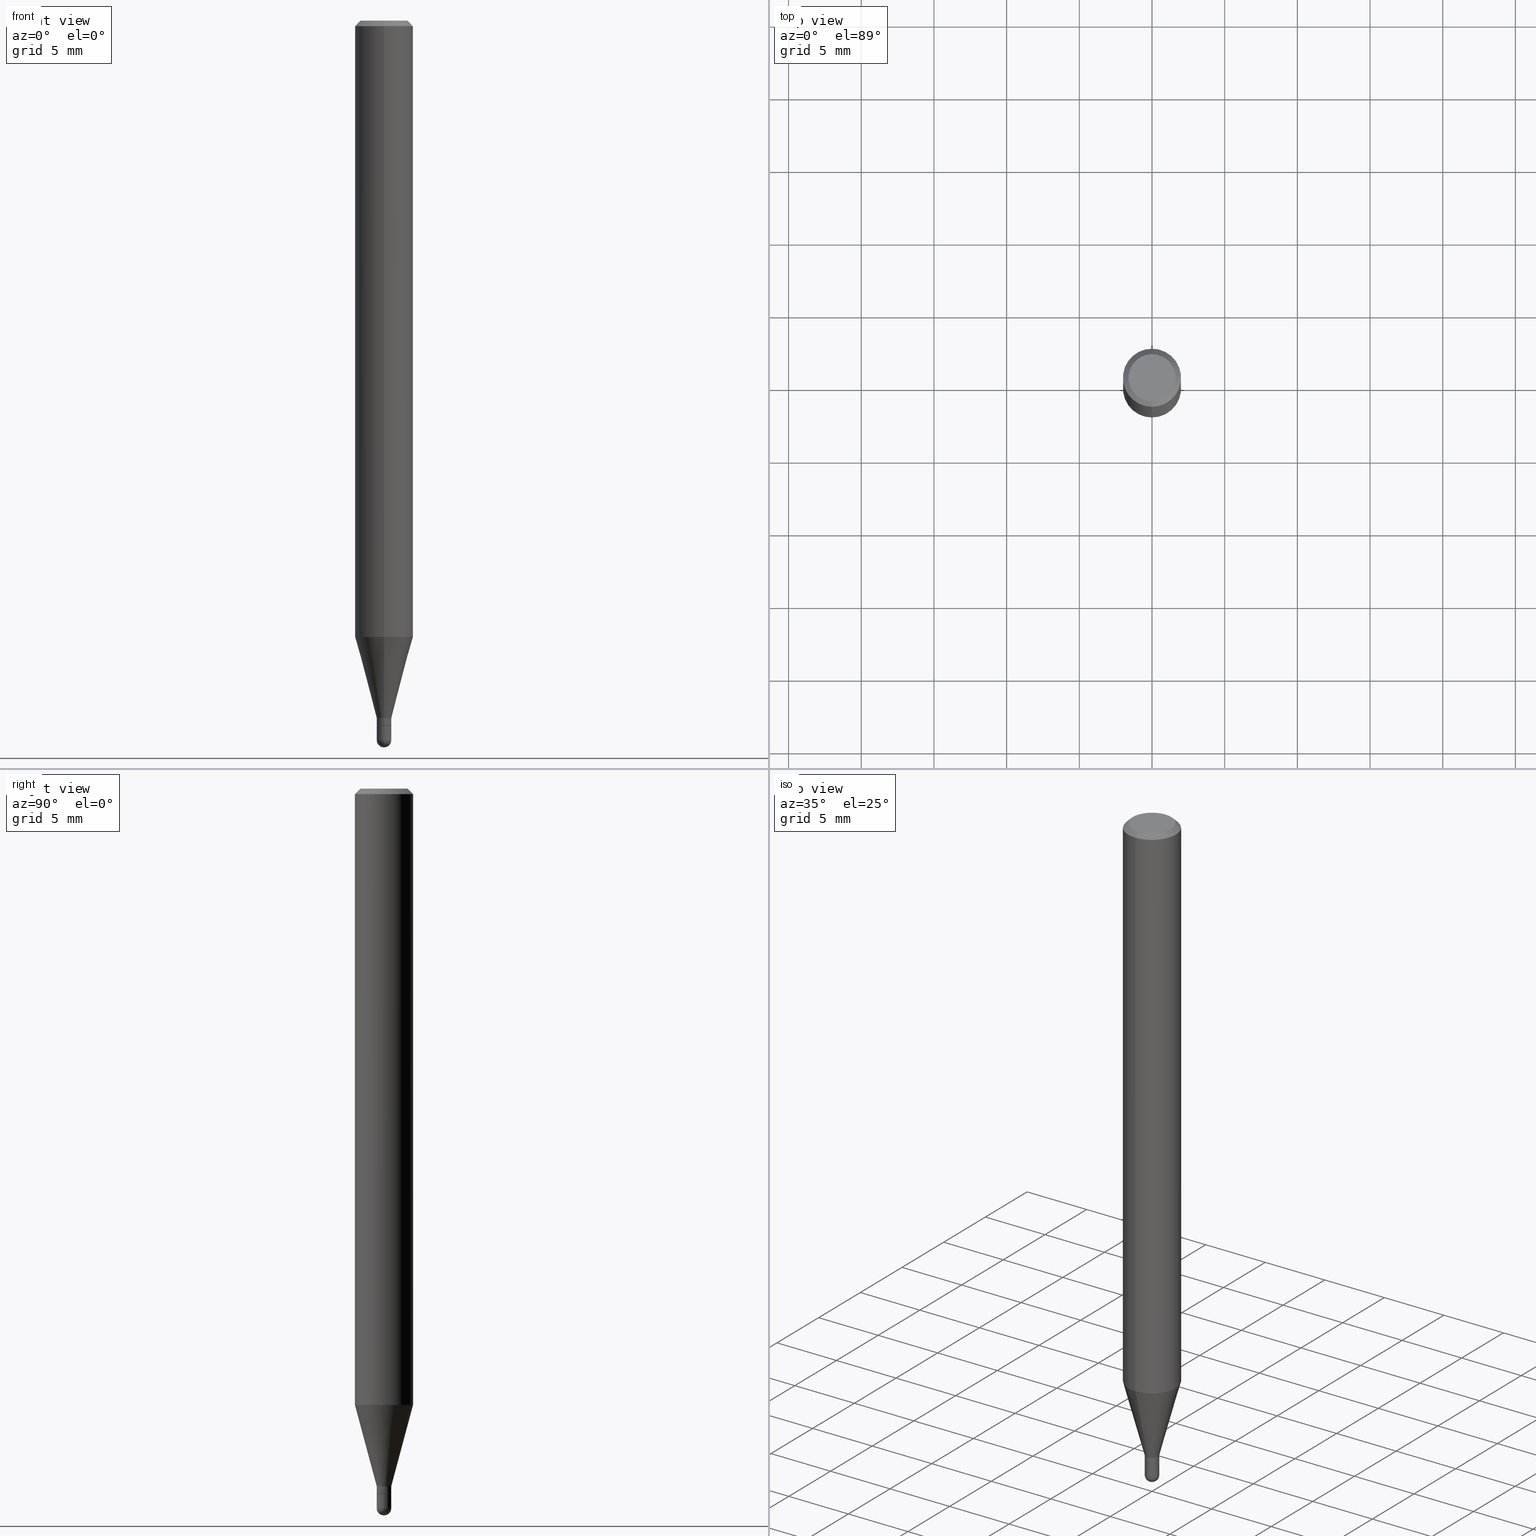
[diagram: canonical four-view strip — front | top / right | iso, engineering-drawing reading convention]
A machine part, canonical four-view strip (front | top / right | iso — engineering-drawing reading convention). The complete STEP part file that produces these views, byte-faithful:
ISO-10303-21;
HEADER;
FILE_DESCRIPTION (( 'STEP AP203' ),
    '1' );
FILE_NAME ('02031.STEP',
    '2024-03-07T19:57:05',
    ( '' ),
    ( '' ),
    'SwSTEP 2.0',
    'SolidWorks 2023',
    '' );
FILE_SCHEMA (( 'CONFIG_CONTROL_DESIGN' ));
ENDSEC;

DATA;
#1 = LINE ( 'NONE', #472, #67 ) ;
#2 = DIRECTION ( 'NONE',  ( -2.444276121271986138E-29, 3.493189331522186389E-15, 1.000000000000000000 ) ) ;
#3 = AXIS2_PLACEMENT_3D ( 'NONE', #57, #369, #54 ) ;
#4 = ORIENTED_EDGE ( 'NONE', *, *, #414, .F. ) ;
#5 = DIRECTION ( 'NONE',  ( -2.444276121271986138E-29, 3.493189331522185995E-15, 1.000000000000000000 ) ) ;
#6 = ADVANCED_FACE ( 'NONE', ( #226 ), #271, .T. ) ;
#7 = PLANE ( 'NONE',  #394 ) ;
#8 = ORIENTED_EDGE ( 'NONE', *, *, #412, .T. ) ;
#9 = APPROVAL_ROLE ( '' ) ;
#10 = DIRECTION ( 'NONE',  ( 1.000000000000000000, -6.982962677686276177E-15, 0.000000000000000000 ) ) ;
#11 = CIRCLE ( 'NONE', #302, 0.07875000000000000056 ) ;
#12 = DIRECTION ( 'NONE',  ( 6.982962677686264344E-15, 1.000000000000000000, -3.496114991891765576E-15 ) ) ;
#13 = CONICAL_SURFACE ( 'NONE', #172, 0.01920000000000000179, 0.7853981633974739252 ) ;
#14 = CC_DESIGN_DATE_AND_TIME_ASSIGNMENT ( #415, #494, ( #452 ) ) ;
#15 = ADVANCED_FACE ( 'NONE', ( #438 ), #144, .T. ) ;
#16 = LINE ( 'NONE', #171, #182 ) ;
#17 = EDGE_CURVE ( 'NONE', #152, #454, #451, .T. ) ;
#18 = CONICAL_SURFACE ( 'NONE', #418, 0.07875000000000000056, 0.7853981633974483900 ) ;
#19 = AXIS2_PLACEMENT_3D ( 'NONE', #512, #432, #356 ) ;
#20 = CC_DESIGN_PERSON_AND_ORGANIZATION_ASSIGNMENT ( #279, #474, ( #156 ) ) ;
#21 = CALENDAR_DATE ( 2024, 7, 3 ) ;
#22 = VERTEX_POINT ( 'NONE', #128 ) ;
#23 = AXIS2_PLACEMENT_3D ( 'NONE', #347, #371, #10 ) ;
#24 = ORIENTED_EDGE ( 'NONE', *, *, #412, .F. ) ;
#25 = EDGE_LOOP ( 'NONE', ( #4, #270, #185, #421 ) ) ;
#26 = DIRECTION ( 'NONE',  ( -6.982962677686264344E-15, -1.000000000000000000, 3.493189331522186389E-15 ) ) ;
#27 = VERTEX_POINT ( 'NONE', #389 ) ;
#28 = LINE ( 'NONE', #504, #331 ) ;
#29 = DIRECTION ( 'NONE',  ( -6.982962677686265922E-15, -1.000000000000000000, 0.000000000000000000 ) ) ;
#30 = ORIENTED_EDGE ( 'NONE', *, *, #17, .T. ) ;
#31 = UNCERTAINTY_MEASURE_WITH_UNIT (LENGTH_MEASURE( 1.000000000000000082E-05 ), #45, 'distance_accuracy_value', 'NONE');
#32 = EDGE_LOOP ( 'NONE', ( #110, #199, #406, #277, #84 ) ) ;
#33 = CARTESIAN_POINT ( 'NONE',  ( -5.499083108677528180E-16, -0.07875000000000582923, -1.669122399813057989 ) ) ;
#34 = CYLINDRICAL_SURFACE ( 'NONE', #250, 0.07875000000000000056 ) ;
#35 = PERSON_AND_ORGANIZATION ( #311, #155 ) ;
#36 = CIRCLE ( 'NONE', #498, 0.01970000000000000570 ) ;
#37 = DIRECTION ( 'NONE',  ( 6.982962677686264344E-15, 1.000000000000000000, -3.496114991891765576E-15 ) ) ;
#38 = CARTESIAN_POINT ( 'NONE',  ( 4.764044931903911326E-29, -6.806611387331842194E-15, -1.948800000000000088 ) ) ;
#39 = CARTESIAN_POINT ( 'NONE',  ( 4.618459731143418039E-29, -6.600381241911171690E-15, -1.889499999999999957 ) ) ;
#40 = FACE_OUTER_BOUND ( 'NONE', #25, .T. ) ;
#41 = CARTESIAN_POINT ( 'NONE',  ( 4.667100825956731031E-29, -6.669895709608463637E-15, -1.909400000000000208 ) ) ;
#42 = COORDINATED_UNIVERSAL_TIME_OFFSET ( 5, 0, .BEHIND. ) ;
#43 = AXIS2_PLACEMENT_3D ( 'NONE', #397, #2, #113 ) ;
#44 = ADVANCED_FACE ( 'NONE', ( #334 ), #34, .T. ) ;
#45 =( CONVERSION_BASED_UNIT ( 'INCH', #324 ) LENGTH_UNIT ( ) NAMED_UNIT ( #149 ) );
#46 = VERTEX_POINT ( 'NONE', #100 ) ;
#47 = DIRECTION ( 'NONE',  ( 1.000000000000000000, -6.982962677686267499E-15, 4.876176775795935232E-29 ) ) ;
#48 = DIRECTION ( 'NONE',  ( 1.000000000000000000, -6.982962677686278543E-15, 0.000000000000000000 ) ) ;
#49 = EDGE_LOOP ( 'NONE', ( #483, #313, #300, #262 ) ) ;
#50 = CARTESIAN_POINT ( 'NONE',  ( 0.01970000000000000570, -6.872981015512733285E-15, -1.948800000000000310 ) ) ;
#51 = DIRECTION ( 'NONE',  ( -1.000000000000000000, 6.982962677686266711E-15, -4.883557194083112901E-29 ) ) ;
#52 = AXIS2_PLACEMENT_3D ( 'NONE', #98, #211, #343 ) ;
#53 = CALENDAR_DATE ( 2024, 7, 3 ) ;
#54 = DIRECTION ( 'NONE',  ( -6.982962677686265922E-15, -1.000000000000000000, 0.000000000000000000 ) ) ;
#55 = PERSON_AND_ORGANIZATION_ROLE ( 'design_supplier' ) ;
#56 = FACE_OUTER_BOUND ( 'NONE', #335, .T. ) ;
#57 = CARTESIAN_POINT ( 'NONE',  ( 4.618459731143418039E-29, -6.600381241911171690E-15, -1.889499999999999957 ) ) ;
#58 = CIRCLE ( 'NONE', #108, 0.07875000000000000056 ) ;
#59 = LOCAL_TIME ( 14, 57, 5.000000000000000000, #377 ) ;
#60 = FACE_OUTER_BOUND ( 'NONE', #396, .T. ) ;
#61 = EDGE_LOOP ( 'NONE', ( #234, #140, #73, #197 ) ) ;
#62 = ORIENTED_EDGE ( 'NONE', *, *, #69, .F. ) ;
#63 = CARTESIAN_POINT ( 'NONE',  ( -1.375643647503727702E-16, -0.01970000000000653173, -1.889499999999999957 ) ) ;
#64 = ORIENTED_EDGE ( 'NONE', *, *, #205, .T. ) ;
#65 = VERTEX_POINT ( 'NONE', #510 ) ;
#66 = EDGE_CURVE ( 'NONE', #222, #65, #178, .T. ) ;
#67 = VECTOR ( 'NONE', #189, 39.37007874015748143 ) ;
#68 = VECTOR ( 'NONE', #327, 39.37007874015748143 ) ;
#69 = EDGE_CURVE ( 'NONE', #458, #152, #460, .T. ) ;
#70 = DIRECTION ( 'NONE',  ( -2.444276121271986138E-29, 3.493189331522186389E-15, 1.000000000000000000 ) ) ;
#71 = ADVANCED_FACE ( 'NONE', ( #203 ), #77, .F. ) ;
#72 = CARTESIAN_POINT ( 'NONE',  ( 4.813063006180600229E-29, -6.874187292609892149E-15, -1.968499999999999694 ) ) ;
#73 = ORIENTED_EDGE ( 'NONE', *, *, #88, .T. ) ;
#74 = APPROVAL_STATUS ( 'not_yet_approved' ) ;
#75 = CARTESIAN_POINT ( 'NONE',  ( 4.079796025343252111E-29, -5.830560560031684325E-15, -1.669122399813058433 ) ) ;
#76 = AXIS2_PLACEMENT_3D ( 'NONE', #159, #314, #161 ) ;
#77 = PLANE ( 'NONE',  #240 ) ;
#78 = ORIENTED_EDGE ( 'NONE', *, *, #17, .F. ) ;
#79 = DIRECTION ( 'NONE',  ( -6.982962677686264344E-15, -1.000000000000000000, 0.000000000000000000 ) ) ;
#80 = ORIENTED_EDGE ( 'NONE', *, *, #291, .T. ) ;
#81 = ORIENTED_EDGE ( 'NONE', *, *, #291, .F. ) ;
#82 = DIRECTION ( 'NONE',  ( 6.982962677686265922E-15, 1.000000000000000000, 0.000000000000000000 ) ) ;
#83 = DIRECTION ( 'NONE',  ( -2.445468806185136597E-29, 3.491481338843145583E-15, 1.000000000000000000 ) ) ;
#84 = ORIENTED_EDGE ( 'NONE', *, *, #148, .F. ) ;
#85 = CARTESIAN_POINT ( 'NONE',  ( 4.079796025343252111E-29, -5.830560560031684325E-15, -1.669122399813058433 ) ) ;
#86 = CARTESIAN_POINT ( 'NONE',  ( -4.888104823412213911E-16, -0.06375000000000000111, 4.578979883307718753E-16 ) ) ;
#87 = ADVANCED_FACE ( 'NONE', ( #493 ), #281, .T. ) ;
#88 = EDGE_CURVE ( 'NONE', #502, #22, #58, .T. ) ;
#89 = ORIENTED_EDGE ( 'NONE', *, *, #325, .F. ) ;
#90 = AXIS2_PLACEMENT_3D ( 'NONE', #489, #429, #26 ) ;
#91 = DIRECTION ( 'NONE',  ( -6.982962677686264344E-15, -1.000000000000000000, 0.000000000000000000 ) ) ;
#92 = DIRECTION ( 'NONE',  ( -2.445468806185136597E-29, 3.491481338843145583E-15, 1.000000000000000000 ) ) ;
#93 = PRODUCT_DEFINITION_FORMATION_WITH_SPECIFIED_SOURCE ( 'ANY', '', #156, .NOT_KNOWN. ) ;
#94 = CARTESIAN_POINT ( 'NONE',  ( 0.000000000000000000, 0.000000000000000000, 0.000000000000000000 ) ) ;
#95 = APPROVAL_PERSON_ORGANIZATION ( #375, #388, #9 ) ;
#96 = PERSON_AND_ORGANIZATION ( #311, #155 ) ;
#97 = CARTESIAN_POINT ( 'NONE',  ( 5.499083108677937401E-16, 0.07874999999999994504, -0.01500000000000004108 ) ) ;
#98 = CARTESIAN_POINT ( 'NONE',  ( 0.000000000000000000, 0.000000000000000000, 0.000000000000000000 ) ) ;
#99 = COORDINATED_UNIVERSAL_TIME_OFFSET ( 5, 0, .BEHIND. ) ;
#100 = CARTESIAN_POINT ( 'NONE',  ( -0.01969999999999999876, -6.595439731817572395E-15, -1.909400000000000208 ) ) ;
#101 = EDGE_LOOP ( 'NONE', ( #456, #8, #475, #143 ) ) ;
#102 = CYLINDRICAL_SURFACE ( 'NONE', #90, 0.01969999999999992937 ) ;
#103 = APPROVAL_STATUS ( 'not_yet_approved' ) ;
#104 = AXIS2_PLACEMENT_3D ( 'NONE', #466, #51, #358 ) ;
#105 = APPROVAL_PERSON_ORGANIZATION ( #497, #459, #225 ) ;
#106 = PERSON_AND_ORGANIZATION ( #311, #155 ) ;
#107 = DIRECTION ( 'NONE',  ( -2.445468806185136597E-29, 3.491481338843145583E-15, 1.000000000000000000 ) ) ;
#108 = AXIS2_PLACEMENT_3D ( 'NONE', #138, #340, #486 ) ;
#109 = AXIS2_PLACEMENT_3D ( 'NONE', #39, #348, #164 ) ;
#110 = ORIENTED_EDGE ( 'NONE', *, *, #183, .F. ) ;
#111 = ORIENTED_EDGE ( 'NONE', *, *, #315, .F. ) ;
#112 = CLOSED_SHELL ( 'NONE', ( #6, #15, #420, #87, #481, #395, #44, #131, #492, #71, #422, #232 ) ) ;
#113 = DIRECTION ( 'NONE',  ( -6.982962677686264344E-15, -1.000000000000000000, 3.493189331522186389E-15 ) ) ;
#114 = DIRECTION ( 'NONE',  ( -1.807323732225331323E-15, -0.2588190451025183525, 0.9659258262890689783 ) ) ;
#115 = LINE ( 'NONE', #387, #424 ) ;
#116 = DIRECTION ( 'NONE',  ( -2.445468806185136597E-29, 3.491481338843145583E-15, 1.000000000000000000 ) ) ;
#117 = AXIS2_PLACEMENT_3D ( 'NONE', #447, #206, #132 ) ;
#118 = CC_DESIGN_SECURITY_CLASSIFICATION ( #452, ( #93 ) ) ;
#119 = PLANE ( 'NONE',  #19 ) ;
#120 = EDGE_LOOP ( 'NONE', ( #364, #202, #419, #437 ) ) ;
#121 = VERTEX_POINT ( 'NONE', #500 ) ;
#122 = CARTESIAN_POINT ( 'NONE',  ( -1.375643647503727702E-16, -0.01970000000000653173, -1.889499999999999957 ) ) ;
#123 = CARTESIAN_POINT ( 'NONE',  ( -0.01970000000000000223, 1.399769189447397525E-16, -9.690302127802166004E-31 ) ) ;
#124 =( NAMED_UNIT ( * ) SI_UNIT ( $, .STERADIAN. ) SOLID_ANGLE_UNIT ( ) );
#125 = EDGE_LOOP ( 'NONE', ( #296, #450, #174, #167 ) ) ;
#126 = CIRCLE ( 'NONE', #345, 0.07875000000000000056 ) ;
#127 = AXIS2_PLACEMENT_3D ( 'NONE', #392, #193, #355 ) ;
#128 = CARTESIAN_POINT ( 'NONE',  ( 5.595524044111199211E-16, 0.07874999999999994504, -0.01500000000000004108 ) ) ;
#129 = CALENDAR_DATE ( 2024, 7, 3 ) ;
#130 =( NAMED_UNIT ( * ) PLANE_ANGLE_UNIT ( ) SI_UNIT ( $, .RADIAN. ) );
#131 = ADVANCED_FACE ( 'NONE', ( #210 ), #18, .T. ) ;
#132 = DIRECTION ( 'NONE',  ( -6.982962677686265133E-15, -1.000000000000000000, 0.000000000000000000 ) ) ;
#133 = CARTESIAN_POINT ( 'NONE',  ( 4.667100825956731031E-29, -6.669895709608463637E-15, -1.909400000000000208 ) ) ;
#134 = CARTESIAN_POINT ( 'NONE',  ( 4.669378138529899942E-29, -6.666634468387102886E-15, -1.909400000000000208 ) ) ;
#135 = AXIS2_PLACEMENT_3D ( 'NONE', #464, #431, #91 ) ;
#136 = APPROVAL_PERSON_ORGANIZATION ( #96, #333, #246 ) ;
#137 = DIRECTION ( 'NONE',  ( -2.444276121271986138E-29, 3.493189331522186389E-15, 1.000000000000000000 ) ) ;
#138 = CARTESIAN_POINT ( 'NONE',  ( 3.666414181907922070E-31, -5.239783997283198085E-17, -0.01499999999999976526 ) ) ;
#139 = ORIENTED_EDGE ( 'NONE', *, *, #509, .F. ) ;
#140 = ORIENTED_EDGE ( 'NONE', *, *, #473, .T. ) ;
#141 = SPHERICAL_SURFACE ( 'NONE', #104, 0.01969999999999990509 ) ;
#142 = CC_DESIGN_PERSON_AND_ORGANIZATION_ASSIGNMENT ( #192, #55, ( #93 ) ) ;
#143 = ORIENTED_EDGE ( 'NONE', *, *, #354, .F. ) ;
#144 = CONICAL_SURFACE ( 'NONE', #488, 0.01920000000000000179, 0.7853981633974739252 ) ;
#145 = ORIENTED_EDGE ( 'NONE', *, *, #380, .T. ) ;
#146 = MANIFOLD_SOLID_BREP ( 'Body-Move/Copy2[2]', #112 ) ;
#147 = EDGE_CURVE ( 'NONE', #247, #184, #359, .T. ) ;
#148 = EDGE_CURVE ( 'NONE', #46, #221, #330, .T. ) ;
#149 = DIMENSIONAL_EXPONENTS ( 1.000000000000000000, 0.000000000000000000, 0.000000000000000000, 0.000000000000000000, 0.000000000000000000, 0.000000000000000000, 0.000000000000000000 ) ;
#150 = ORIENTED_EDGE ( 'NONE', *, *, #310, .T. ) ;
#151 = CARTESIAN_POINT ( 'NONE',  ( 1.399769189447853585E-16, 0.01969999999999318824, -1.908900000000000263 ) ) ;
#152 = VERTEX_POINT ( 'NONE', #434 ) ;
#153 = DIRECTION ( 'NONE',  ( -2.445468806185136597E-29, 3.491481338843145583E-15, 1.000000000000000000 ) ) ;
#154 = DESIGN_CONTEXT ( 'detailed design', #485, 'design' ) ;
#155 = ORGANIZATION ( 'UNSPECIFIED', 'UNSPECIFIED', '' ) ;
#156 = PRODUCT ( '02031', '02031', '', ( #373 ) ) ;
#157 = DIRECTION ( 'NONE',  ( -2.444276121271986138E-29, 3.493189331522186389E-15, 1.000000000000000000 ) ) ;
#158 = CARTESIAN_POINT ( 'NONE',  ( 1.399769189447854324E-16, 0.01969999999999333395, -1.889499999999999957 ) ) ;
#159 = CARTESIAN_POINT ( 'NONE',  ( 4.765729609493595098E-29, -6.804198833137522889E-15, -1.948800000000000310 ) ) ;
#160 = DIRECTION ( 'NONE',  ( -6.982962677686264344E-15, -1.000000000000000000, 3.469013325287953293E-15 ) ) ;
#161 = DIRECTION ( 'NONE',  ( 1.000000000000000000, -6.982962677686276177E-15, 0.000000000000000000 ) ) ;
#162 = ORIENTED_EDGE ( 'NONE', *, *, #455, .T. ) ;
#163 = VECTOR ( 'NONE', #280, 39.37007874015748143 ) ;
#164 = DIRECTION ( 'NONE',  ( -6.982962677686265922E-15, -1.000000000000000000, 0.000000000000000000 ) ) ;
#165 = ORIENTED_EDGE ( 'NONE', *, *, #354, .T. ) ;
#166 = COORDINATED_UNIVERSAL_TIME_OFFSET ( 5, 0, .BEHIND. ) ;
#167 = ORIENTED_EDGE ( 'NONE', *, *, #339, .F. ) ;
#168 = PRODUCT_RELATED_PRODUCT_CATEGORY ( 'detail', '', ( #156 ) ) ;
#169 = DIRECTION ( 'NONE',  ( -2.444276121271986138E-29, 3.493189331522186389E-15, 1.000000000000000000 ) ) ;
#170 = AXIS2_PLACEMENT_3D ( 'NONE', #229, #385, #29 ) ;
#171 = CARTESIAN_POINT ( 'NONE',  ( 5.595524044110787031E-16, 0.07875000000000000056, -2.750886598573721673E-16 ) ) ;
#172 = AXIS2_PLACEMENT_3D ( 'NONE', #508, #157, #462 ) ;
#173 = CARTESIAN_POINT ( 'NONE',  ( 4.669378138529899942E-29, -6.666634468387102886E-15, -1.909400000000000208 ) ) ;
#174 = ORIENTED_EDGE ( 'NONE', *, *, #341, .F. ) ;
#175 = DIRECTION ( 'NONE',  ( 6.982962677686265922E-15, 1.000000000000000000, -3.493189331522185995E-15 ) ) ;
#176 = LINE ( 'NONE', #288, #200 ) ;
#177 =( LENGTH_UNIT ( ) NAMED_UNIT ( * ) SI_UNIT ( $, .METRE. ) );
#178 = CIRCLE ( 'NONE', #170, 0.01969999999999993284 ) ;
#179 = EDGE_CURVE ( 'NONE', #236, #152, #36, .T. ) ;
#180 = CC_DESIGN_PERSON_AND_ORGANIZATION_ASSIGNMENT ( #106, #448, ( #93 ) ) ;
#181 = CIRCLE ( 'NONE', #3, 0.01969999999999993284 ) ;
#182 = VECTOR ( 'NONE', #363, 39.37007874015748143 ) ;
#183 = EDGE_CURVE ( 'NONE', #454, #46, #368, .T. ) ;
#184 = VERTEX_POINT ( 'NONE', #204 ) ;
#185 = ORIENTED_EDGE ( 'NONE', *, *, #339, .T. ) ;
#186 = LINE ( 'NONE', #158, #243 ) ;
#187 = ORIENTED_EDGE ( 'NONE', *, *, #263, .F. ) ;
#188 = ORIENTED_EDGE ( 'NONE', *, *, #503, .F. ) ;
#189 = DIRECTION ( 'NONE',  ( -2.444276121271985858E-29, 3.493189331522185995E-15, 1.000000000000000000 ) ) ;
#190 = CARTESIAN_POINT ( 'NONE',  ( 0.000000000000000000, 0.000000000000000000, 0.000000000000000000 ) ) ;
#191 = CLOSED_SHELL ( 'NONE', ( #417, #216, #391, #329, #304 ) ) ;
#192 = PERSON_AND_ORGANIZATION ( #311, #155 ) ;
#193 = DIRECTION ( 'NONE',  ( -2.444276121271986138E-29, 3.493189331522186389E-15, 1.000000000000000000 ) ) ;
#194 = CARTESIAN_POINT ( 'NONE',  ( 4.764044931903911326E-29, -6.806611387331842194E-15, -1.948800000000000088 ) ) ;
#195 = LINE ( 'NONE', #260, #342 ) ;
#196 = ORIENTED_EDGE ( 'NONE', *, *, #505, .T. ) ;
#197 = ORIENTED_EDGE ( 'NONE', *, *, #213, .F. ) ;
#198 = CARTESIAN_POINT ( 'NONE',  ( -1.399769189446917306E-16, -0.01970000000000675724, -1.948800000000000310 ) ) ;
#199 = ORIENTED_EDGE ( 'NONE', *, *, #259, .T. ) ;
#200 = VECTOR ( 'NONE', #255, 39.37007874015748143 ) ;
#201 =( GEOMETRIC_REPRESENTATION_CONTEXT ( 3 ) GLOBAL_UNCERTAINTY_ASSIGNED_CONTEXT ( ( #31 ) ) GLOBAL_UNIT_ASSIGNED_CONTEXT ( ( #45, #130, #124 ) ) REPRESENTATION_CONTEXT ( 'NONE', 'WORKASPACE' ) );
#202 = ORIENTED_EDGE ( 'NONE', *, *, #503, .T. ) ;
#203 = FACE_OUTER_BOUND ( 'NONE', #297, .T. ) ;
#204 = CARTESIAN_POINT ( 'NONE',  ( 4.975360907851465623E-16, 0.06375000000000000111, 1.251634856169306932E-17 ) ) ;
#205 = EDGE_CURVE ( 'NONE', #299, #362, #11, .T. ) ;
#206 = DIRECTION ( 'NONE',  ( -2.444276121271986138E-29, 3.493189331522186389E-15, 1.000000000000000000 ) ) ;
#207 = APPROVAL_DATE_TIME ( #410, #333 ) ;
#208 = DIRECTION ( 'NONE',  ( 6.982962677686266711E-15, 1.000000000000000000, 0.000000000000000000 ) ) ;
#209 = AXIS2_PLACEMENT_3D ( 'NONE', #220, #309, #79 ) ;
#210 = FACE_OUTER_BOUND ( 'NONE', #357, .T. ) ;
#211 = DIRECTION ( 'NONE',  ( -2.444276121271986138E-29, 3.493189331522186389E-15, 1.000000000000000000 ) ) ;
#212 = DATE_TIME_ROLE ( 'creation_date' ) ;
#213 = EDGE_CURVE ( 'NONE', #184, #22, #480, .T. ) ;
#214 = CIRCLE ( 'NONE', #242, 0.01969999999999990509 ) ;
#215 = SHAPE_DEFINITION_REPRESENTATION ( #295, #381 ) ;
#216 = ADVANCED_FACE ( 'NONE', ( #56 ), #261, .T. ) ;
#217 = EDGE_CURVE ( 'NONE', #425, #236, #268, .T. ) ;
#218 = EDGE_LOOP ( 'NONE', ( #30, #227, #298, #139, #401 ) ) ;
#219 = CC_DESIGN_APPROVAL ( #459, ( #452 ) ) ;
#220 = CARTESIAN_POINT ( 'NONE',  ( 4.665878687896094238E-29, -6.668149114942702917E-15, -1.908900000000000263 ) ) ;
#221 = VERTEX_POINT ( 'NONE', #249 ) ;
#222 = VERTEX_POINT ( 'NONE', #63 ) ;
#223 = CARTESIAN_POINT ( 'NONE',  ( -0.01970000000000000570, -6.595439731817572395E-15, -1.948800000000000310 ) ) ;
#224 = ORIENTED_EDGE ( 'NONE', *, *, #285, .T. ) ;
#225 = APPROVAL_ROLE ( '' ) ;
#226 = FACE_OUTER_BOUND ( 'NONE', #101, .T. ) ;
#227 = ORIENTED_EDGE ( 'NONE', *, *, #183, .T. ) ;
#228 = FACE_OUTER_BOUND ( 'NONE', #125, .T. ) ;
#229 = CARTESIAN_POINT ( 'NONE',  ( 4.618459731143418039E-29, -6.600381241911171690E-15, -1.889499999999999957 ) ) ;
#230 = VECTOR ( 'NONE', #326, 39.37007874015748143 ) ;
#231 = FACE_OUTER_BOUND ( 'NONE', #471, .T. ) ;
#232 = ADVANCED_FACE ( 'NONE', ( #60 ), #102, .T. ) ;
#233 = CARTESIAN_POINT ( 'NONE',  ( 5.595524044111194280E-16, 0.07874999999999415801, -1.669122399813058655 ) ) ;
#234 = ORIENTED_EDGE ( 'NONE', *, *, #147, .F. ) ;
#235 = CARTESIAN_POINT ( 'NONE',  ( 3.666414181907922070E-31, -5.239783997283198085E-17, -0.01499999999999976526 ) ) ;
#236 = VERTEX_POINT ( 'NONE', #50 ) ;
#237 = EDGE_CURVE ( 'NONE', #458, #425, #214, .T. ) ;
#238 = DIRECTION ( 'NONE',  ( -2.444276121271986138E-29, 3.493189331522186389E-15, 1.000000000000000000 ) ) ;
#239 = DATE_AND_TIME ( #53, #507 ) ;
#240 = AXIS2_PLACEMENT_3D ( 'NONE', #321, #5, #365 ) ;
#241 = ORIENTED_EDGE ( 'NONE', *, *, #325, .T. ) ;
#242 = AXIS2_PLACEMENT_3D ( 'NONE', #38, #360, #440 ) ;
#243 = VECTOR ( 'NONE', #322, 39.37007874015748854 ) ;
#244 = CC_DESIGN_DATE_AND_TIME_ASSIGNMENT ( #487, #212, ( #274 ) ) ;
#245 = DIRECTION ( 'NONE',  ( 1.000000000000000000, -6.982962677686276177E-15, 0.000000000000000000 ) ) ;
#246 = APPROVAL_ROLE ( '' ) ;
#247 = VERTEX_POINT ( 'NONE', #86 ) ;
#248 = CARTESIAN_POINT ( 'NONE',  ( 4.451638707024993845E-16, 0.06375000000000000111, -1.050872356614231526E-16 ) ) ;
#249 = CARTESIAN_POINT ( 'NONE',  ( 0.01969999999999999876, -6.804198833137522889E-15, -1.909400000000000208 ) ) ;
#250 = AXIS2_PLACEMENT_3D ( 'NONE', #190, #282, #352 ) ;
#251 = PERSON_AND_ORGANIZATION ( #311, #155 ) ;
#252 = AXIS2_PLACEMENT_3D ( 'NONE', #235, #400, #37 ) ;
#253 = DIRECTION ( 'NONE',  ( -2.444276121271986138E-29, 3.493189331522186389E-15, 1.000000000000000000 ) ) ;
#254 = CONICAL_SURFACE ( 'NONE', #252, 0.07875000000000000056, 0.7853981633974483900 ) ;
#255 = DIRECTION ( 'NONE',  ( -4.937700262164674260E-15, -0.7071067811865632269, 0.7071067811865319186 ) ) ;
#256 = ORIENTED_EDGE ( 'NONE', *, *, #237, .T. ) ;
#257 = ORIENTED_EDGE ( 'NONE', *, *, #310, .F. ) ;
#258 = CIRCLE ( 'NONE', #43, 0.06375000000000000111 ) ;
#259 = EDGE_CURVE ( 'NONE', #454, #425, #351, .T. ) ;
#260 = CARTESIAN_POINT ( 'NONE',  ( 1.364242052659858898E-16, 0.01919999999999333004, -1.909400000000000208 ) ) ;
#261 = SPHERICAL_SURFACE ( 'NONE', #378, 0.01969999999999990509 ) ;
#262 = ORIENTED_EDGE ( 'NONE', *, *, #217, .F. ) ;
#263 = EDGE_CURVE ( 'NONE', #27, #449, #176, .T. ) ;
#264 = DIRECTION ( 'NONE',  ( -2.444276121271985858E-29, 3.493189331522185995E-15, 1.000000000000000000 ) ) ;
#265 = CC_DESIGN_PERSON_AND_ORGANIZATION_ASSIGNMENT ( #251, #332, ( #274 ) ) ;
#266 = FACE_OUTER_BOUND ( 'NONE', #323, .T. ) ;
#267 = CYLINDRICAL_SURFACE ( 'NONE', #372, 0.01970000000000000223 ) ;
#268 = CIRCLE ( 'NONE', #23, 0.01970000000000000570 ) ;
#269 = DIRECTION ( 'NONE',  ( -2.444276121271986138E-29, 3.493189331522186389E-15, 1.000000000000000000 ) ) ;
#270 = ORIENTED_EDGE ( 'NONE', *, *, #315, .T. ) ;
#271 = CYLINDRICAL_SURFACE ( 'NONE', #433, 0.01969999999999992937 ) ;
#272 = DIRECTION ( 'NONE',  ( 1.000000000000000000, -6.982962677686267499E-15, 4.876176775795935232E-29 ) ) ;
#273 = EDGE_LOOP ( 'NONE', ( #241, #145, #399, #187 ) ) ;
#274 = PRODUCT_DEFINITION ( 'UNKNOWN', '', #93, #154 ) ;
#275 = DIRECTION ( 'NONE',  ( 1.000000000000000000, -6.982962677686265922E-15, 4.883557194083112340E-29 ) ) ;
#276 = AXIS2_PLACEMENT_3D ( 'NONE', #445, #137, #292 ) ;
#277 = ORIENTED_EDGE ( 'NONE', *, *, #509, .T. ) ;
#278 = LOCAL_TIME ( 14, 57, 5.000000000000000000, #353 ) ;
#279 = PERSON_AND_ORGANIZATION ( #311, #155 ) ;
#280 = DIRECTION ( 'NONE',  ( 4.937700262164548042E-15, 0.7071067811865451302, -0.7071067811865499042 ) ) ;
#281 = CYLINDRICAL_SURFACE ( 'NONE', #52, 0.07875000000000000056 ) ;
#282 = DIRECTION ( 'NONE',  ( -2.444276121271986138E-29, 3.493189331522186389E-15, 1.000000000000000000 ) ) ;
#283 = CARTESIAN_POINT ( 'NONE',  ( 3.666414181907922070E-31, -5.239783997283198085E-17, -0.01499999999999976526 ) ) ;
#284 = CARTESIAN_POINT ( 'NONE',  ( 0.000000000000000000, 0.000000000000000000, 0.000000000000000000 ) ) ;
#285 = EDGE_CURVE ( 'NONE', #457, #449, #382, .T. ) ;
#286 = ORIENTED_EDGE ( 'NONE', *, *, #213, .T. ) ;
#287 = CIRCLE ( 'NONE', #423, 0.07875000000000000056 ) ;
#288 = CARTESIAN_POINT ( 'NONE',  ( -1.340728834115296398E-16, -0.01920000000000667006, -1.909400000000000208 ) ) ;
#289 = DIRECTION ( 'NONE',  ( 0.000000000000000000, 0.000000000000000000, 1.000000000000000000 ) ) ;
#290 = CIRCLE ( 'NONE', #305, 0.01969999999999999876 ) ;
#291 = EDGE_CURVE ( 'NONE', #22, #502, #126, .T. ) ;
#292 = DIRECTION ( 'NONE',  ( -6.982962677686264344E-15, -1.000000000000000000, 3.493189331522186389E-15 ) ) ;
#293 = EDGE_LOOP ( 'NONE', ( #188, #64, #162, #81 ) ) ;
#294 = AXIS2_PLACEMENT_3D ( 'NONE', #284, #289, #336 ) ;
#295 = PRODUCT_DEFINITION_SHAPE ( 'NONE', 'NONE',  #274 ) ;
#296 = ORIENTED_EDGE ( 'NONE', *, *, #66, .T. ) ;
#297 = EDGE_LOOP ( 'NONE', ( #89, #257 ) ) ;
#298 = ORIENTED_EDGE ( 'NONE', *, *, #505, .F. ) ;
#299 = VERTEX_POINT ( 'NONE', #233 ) ;
#300 = ORIENTED_EDGE ( 'NONE', *, *, #179, .F. ) ;
#301 = LINE ( 'NONE', #122, #446 ) ;
#302 = AXIS2_PLACEMENT_3D ( 'NONE', #85, #169, #328 ) ;
#303 = VECTOR ( 'NONE', #439, 39.37007874015748143 ) ;
#304 = ADVANCED_FACE ( 'NONE', ( #312 ), #267, .T. ) ;
#305 = AXIS2_PLACEMENT_3D ( 'NONE', #134, #92, #48 ) ;
#306 = CALENDAR_DATE ( 2024, 7, 3 ) ;
#307 = ORIENTED_EDGE ( 'NONE', *, *, #147, .T. ) ;
#308 = FACE_OUTER_BOUND ( 'NONE', #61, .T. ) ;
#309 = DIRECTION ( 'NONE',  ( -2.444276121271986138E-29, 3.493189331522186389E-15, 1.000000000000000000 ) ) ;
#310 = EDGE_CURVE ( 'NONE', #121, #27, #393, .T. ) ;
#311 = PERSON ( 'UNSPECIFIED', 'UNSPECIFIED', 'UNSPECIFIED', ('UNSPECIFIED'), ('UNSPECIFIED'), ('UNSPECIFIED') ) ;
#312 = FACE_OUTER_BOUND ( 'NONE', #32, .T. ) ;
#313 = ORIENTED_EDGE ( 'NONE', *, *, #69, .T. ) ;
#314 = DIRECTION ( 'NONE',  ( -2.445468806185136597E-29, 3.491481338843145583E-15, 1.000000000000000000 ) ) ;
#315 = EDGE_CURVE ( 'NONE', #65, #222, #181, .T. ) ;
#316 = DIRECTION ( 'NONE',  ( -6.982962677686264344E-15, -1.000000000000000000, 3.496114991891765576E-15 ) ) ;
#317 = CARTESIAN_POINT ( 'NONE',  ( 1.399769189447392101E-16, 0.01969999999999992937, -6.881582983098682316E-17 ) ) ;
#318 = AXIS2_PLACEMENT_3D ( 'NONE', #133, #253, #376 ) ;
#319 = CC_DESIGN_APPROVAL ( #333, ( #274 ) ) ;
#320 = ORIENTED_EDGE ( 'NONE', *, *, #380, .F. ) ;
#321 = CARTESIAN_POINT ( 'NONE',  ( 4.667100825956731031E-29, -6.669895709608463637E-15, -1.909400000000000208 ) ) ;
#322 = DIRECTION ( 'NONE',  ( 1.839019923739601499E-15, 0.2588190451025251249, 0.9659258262890670910 ) ) ;
#323 = EDGE_LOOP ( 'NONE', ( #408, #307 ) ) ;
#324 = LENGTH_MEASURE_WITH_UNIT ( LENGTH_MEASURE( 0.02539999999999999897 ), #177 );
#325 = EDGE_CURVE ( 'NONE', #27, #121, #405, .T. ) ;
#326 = DIRECTION ( 'NONE',  ( -2.445468806185136877E-29, 3.491481338843145188E-15, 1.000000000000000000 ) ) ;
#327 = DIRECTION ( 'NONE',  ( -2.445468806185136877E-29, 3.491481338843145188E-15, 1.000000000000000000 ) ) ;
#328 = DIRECTION ( 'NONE',  ( -6.982962677686264344E-15, -1.000000000000000000, 3.469013325287953293E-15 ) ) ;
#329 = ADVANCED_FACE ( 'NONE', ( #403 ), #141, .T. ) ;
#330 = CIRCLE ( 'NONE', #506, 0.01969999999999999876 ) ;
#331 = VECTOR ( 'NONE', #264, 39.37007874015748143 ) ;
#332 = PERSON_AND_ORGANIZATION_ROLE ( 'creator' ) ;
#333 = APPROVAL ( #103, 'UNSPECIFIED' ) ;
#334 = FACE_OUTER_BOUND ( 'NONE', #293, .T. ) ;
#335 = EDGE_LOOP ( 'NONE', ( #62, #256, #495, #78 ) ) ;
#336 = DIRECTION ( 'NONE',  ( 1.000000000000000000, 0.000000000000000000, 0.000000000000000000 ) ) ;
#337 = APPLICATION_CONTEXT ( 'configuration controlled 3d designs of mechanical parts and assemblies' ) ;
#338 = DIRECTION ( 'NONE',  ( -1.000000000000000000, 6.982962677686266711E-15, -4.883557194083112901E-29 ) ) ;
#339 = EDGE_CURVE ( 'NONE', #222, #362, #301, .T. ) ;
#340 = DIRECTION ( 'NONE',  ( -2.444276121271986138E-29, 3.493189331522186389E-15, 1.000000000000000000 ) ) ;
#341 = EDGE_CURVE ( 'NONE', #362, #299, #287, .T. ) ;
#342 = VECTOR ( 'NONE', #461, 39.37007874015748143 ) ;
#343 = DIRECTION ( 'NONE',  ( -6.982962677686264344E-15, -1.000000000000000000, 3.493189331522186389E-15 ) ) ;
#344 = APPROVAL_DATE_TIME ( #428, #459 ) ;
#345 = AXIS2_PLACEMENT_3D ( 'NONE', #409, #482, #316 ) ;
#346 = LOCAL_TIME ( 14, 57, 5.000000000000000000, #42 ) ;
#347 = CARTESIAN_POINT ( 'NONE',  ( 4.765729609493595098E-29, -6.804198833137522889E-15, -1.948800000000000310 ) ) ;
#348 = DIRECTION ( 'NONE',  ( -2.444276121271986138E-29, 3.493189331522186389E-15, 1.000000000000000000 ) ) ;
#349 = DIRECTION ( 'NONE',  ( 1.000000000000000000, -6.982962677686276177E-15, 0.000000000000000000 ) ) ;
#350 = FACE_OUTER_BOUND ( 'NONE', #379, .T. ) ;
#351 = CIRCLE ( 'NONE', #76, 0.01970000000000000570 ) ;
#352 = DIRECTION ( 'NONE',  ( -6.982962677686264344E-15, -1.000000000000000000, 3.493189331522186389E-15 ) ) ;
#353 = COORDINATED_UNIVERSAL_TIME_OFFSET ( 5, 0, .BEHIND. ) ;
#354 = EDGE_CURVE ( 'NONE', #449, #222, #1, .T. ) ;
#355 = DIRECTION ( 'NONE',  ( -6.982962677686265922E-15, -1.000000000000000000, 0.000000000000000000 ) ) ;
#356 = DIRECTION ( 'NONE',  ( -1.000000000000000000, 6.982962677686265922E-15, -4.876176775795935793E-29 ) ) ;
#357 = EDGE_LOOP ( 'NONE', ( #435, #398, #286, #80 ) ) ;
#358 = DIRECTION ( 'NONE',  ( 6.982962677686266711E-15, 1.000000000000000000, 0.000000000000000000 ) ) ;
#359 = CIRCLE ( 'NONE', #276, 0.06375000000000000111 ) ;
#360 = DIRECTION ( 'NONE',  ( -1.000000000000000000, 7.105427357601001070E-15, -4.926315508542082329E-29 ) ) ;
#361 = LOCAL_TIME ( 14, 57, 5.000000000000000000, #166 ) ;
#362 = VERTEX_POINT ( 'NONE', #33 ) ;
#363 = DIRECTION ( 'NONE',  ( -2.444276121271985858E-29, 3.493189331522185995E-15, 1.000000000000000000 ) ) ;
#364 = ORIENTED_EDGE ( 'NONE', *, *, #341, .T. ) ;
#365 = DIRECTION ( 'NONE',  ( -6.982962677686265922E-15, -1.000000000000000000, 3.493189331522185995E-15 ) ) ;
#366 = DIRECTION ( 'NONE',  ( -2.445468806185136597E-29, 3.491481338843145583E-15, 1.000000000000000000 ) ) ;
#367 = EDGE_CURVE ( 'NONE', #184, #247, #258, .T. ) ;
#368 = LINE ( 'NONE', #123, #230 ) ;
#369 = DIRECTION ( 'NONE',  ( -2.444276121271986138E-29, 3.493189331522186389E-15, 1.000000000000000000 ) ) ;
#370 = APPROVAL_STATUS ( 'not_yet_approved' ) ;
#371 = DIRECTION ( 'NONE',  ( -2.445468806185136597E-29, 3.491481338843145583E-15, 1.000000000000000000 ) ) ;
#372 = AXIS2_PLACEMENT_3D ( 'NONE', #94, #366, #47 ) ;
#373 = MECHANICAL_CONTEXT ( 'NONE', #337, 'mechanical' ) ;
#374 = DIRECTION ( 'NONE',  ( 2.444276121271986138E-29, -3.493189331522186389E-15, -1.000000000000000000 ) ) ;
#375 = PERSON_AND_ORGANIZATION ( #311, #155 ) ;
#376 = DIRECTION ( 'NONE',  ( -6.982962677686265133E-15, -1.000000000000000000, 0.000000000000000000 ) ) ;
#377 = COORDINATED_UNIVERSAL_TIME_OFFSET ( 5, 0, .BEHIND. ) ;
#378 = AXIS2_PLACEMENT_3D ( 'NONE', #501, #338, #208 ) ;
#379 = EDGE_LOOP ( 'NONE', ( #320, #150, #496, #416 ) ) ;
#380 = EDGE_CURVE ( 'NONE', #121, #457, #195, .T. ) ;
#381 = ADVANCED_BREP_SHAPE_REPRESENTATION ( '02031', ( #477, #146, #294 ), #201 ) ;
#382 = CIRCLE ( 'NONE', #135, 0.01969999999999992590 ) ;
#383 = CONICAL_SURFACE ( 'NONE', #127, 0.01969999999999993284, 0.2617993877991504625 ) ;
#384 = CARTESIAN_POINT ( 'NONE',  ( -1.375643647503727455E-16, -0.01970000000000666010, -1.908900000000000263 ) ) ;
#385 = DIRECTION ( 'NONE',  ( -2.444276121271986138E-29, 3.493189331522186389E-15, 1.000000000000000000 ) ) ;
#386 = CARTESIAN_POINT ( 'NONE',  ( 0.000000000000000000, 0.000000000000000000, 0.000000000000000000 ) ) ;
#387 = CARTESIAN_POINT ( 'NONE',  ( -5.402642173245076924E-16, -0.07875000000000004219, -0.01499999999999948944 ) ) ;
#388 = APPROVAL ( #370, 'UNSPECIFIED' ) ;
#389 = CARTESIAN_POINT ( 'NONE',  ( -1.340728834115296398E-16, -0.01920000000000667006, -1.909400000000000208 ) ) ;
#390 = PERSON_AND_ORGANIZATION_ROLE ( 'classification_officer' ) ;
#391 = ADVANCED_FACE ( 'NONE', ( #231 ), #119, .F. ) ;
#392 = CARTESIAN_POINT ( 'NONE',  ( 4.618459731143418039E-29, -6.600381241911171690E-15, -1.889499999999999957 ) ) ;
#393 = CIRCLE ( 'NONE', #117, 0.01920000000000000179 ) ;
#394 = AXIS2_PLACEMENT_3D ( 'NONE', #248, #484, #175 ) ;
#395 = ADVANCED_FACE ( 'NONE', ( #40 ), #499, .T. ) ;
#396 = EDGE_LOOP ( 'NONE', ( #24, #224, #165, #111 ) ) ;
#397 = CARTESIAN_POINT ( 'NONE',  ( -5.749112653851238169E-45, 8.216231715139209022E-31, 2.352071684462324407E-16 ) ) ;
#398 = ORIENTED_EDGE ( 'NONE', *, *, #367, .F. ) ;
#399 = ORIENTED_EDGE ( 'NONE', *, *, #427, .F. ) ;
#400 = DIRECTION ( 'NONE',  ( 2.444276121271986138E-29, -3.493189331522186389E-15, -1.000000000000000000 ) ) ;
#401 = ORIENTED_EDGE ( 'NONE', *, *, #179, .T. ) ;
#402 = DIRECTION ( 'NONE',  ( -6.982962677686265133E-15, -1.000000000000000000, 0.000000000000000000 ) ) ;
#403 = FACE_OUTER_BOUND ( 'NONE', #49, .T. ) ;
#404 = APPROVAL_DATE_TIME ( #239, #388 ) ;
#405 = CIRCLE ( 'NONE', #318, 0.01920000000000000179 ) ;
#406 = ORIENTED_EDGE ( 'NONE', *, *, #217, .T. ) ;
#407 = CARTESIAN_POINT ( 'NONE',  ( 0.01970000000000000223, -1.375643647504194856E-16, 9.606068248317993218E-31 ) ) ;
#408 = ORIENTED_EDGE ( 'NONE', *, *, #367, .T. ) ;
#409 = CARTESIAN_POINT ( 'NONE',  ( 3.666414181907922070E-31, -5.239783997283198085E-17, -0.01499999999999976526 ) ) ;
#410 = DATE_AND_TIME ( #444, #361 ) ;
#411 = CARTESIAN_POINT ( 'NONE',  ( -5.499083108677930499E-16, -0.07875000000000004219, -0.01499999999999948944 ) ) ;
#412 = EDGE_CURVE ( 'NONE', #457, #65, #465, .T. ) ;
#413 = LINE ( 'NONE', #407, #68 ) ;
#414 = EDGE_CURVE ( 'NONE', #65, #299, #186, .T. ) ;
#415 = DATE_AND_TIME ( #21, #278 ) ;
#416 = ORIENTED_EDGE ( 'NONE', *, *, #285, .F. ) ;
#417 = ADVANCED_FACE ( 'NONE', ( #426 ), #467, .T. ) ;
#418 = AXIS2_PLACEMENT_3D ( 'NONE', #283, #374, #12 ) ;
#419 = ORIENTED_EDGE ( 'NONE', *, *, #88, .F. ) ;
#420 = ADVANCED_FACE ( 'NONE', ( #308 ), #254, .T. ) ;
#421 = ORIENTED_EDGE ( 'NONE', *, *, #205, .F. ) ;
#422 = ADVANCED_FACE ( 'NONE', ( #350 ), #13, .T. ) ;
#423 = AXIS2_PLACEMENT_3D ( 'NONE', #75, #269, #160 ) ;
#424 = VECTOR ( 'NONE', #430, 39.37007874015748143 ) ;
#425 = VERTEX_POINT ( 'NONE', #198 ) ;
#426 = FACE_OUTER_BOUND ( 'NONE', #218, .T. ) ;
#427 = EDGE_CURVE ( 'NONE', #449, #457, #469, .T. ) ;
#428 = DATE_AND_TIME ( #306, #59 ) ;
#429 = DIRECTION ( 'NONE',  ( -2.444276121271986138E-29, 3.493189331522186389E-15, 1.000000000000000000 ) ) ;
#430 = DIRECTION ( 'NONE',  ( -4.851104656540964275E-15, -0.7071067811865500152, -0.7071067811865450192 ) ) ;
#431 = DIRECTION ( 'NONE',  ( -2.444276121271986138E-29, 3.493189331522186389E-15, 1.000000000000000000 ) ) ;
#432 = DIRECTION ( 'NONE',  ( 2.438088387897960049E-29, -3.491481338843145188E-15, -1.000000000000000000 ) ) ;
#433 = AXIS2_PLACEMENT_3D ( 'NONE', #386, #70, #511 ) ;
#434 = CARTESIAN_POINT ( 'NONE',  ( 1.375643647504667679E-16, 0.01969999999999315007, -1.948800000000000310 ) ) ;
#435 = ORIENTED_EDGE ( 'NONE', *, *, #473, .F. ) ;
#436 = CARTESIAN_POINT ( 'NONE',  ( 0.000000000000000000, 0.000000000000000000, 0.000000000000000000 ) ) ;
#437 = ORIENTED_EDGE ( 'NONE', *, *, #455, .F. ) ;
#438 = FACE_OUTER_BOUND ( 'NONE', #273, .T. ) ;
#439 = DIRECTION ( 'NONE',  ( -2.444276121271985858E-29, 3.493189331522185995E-15, 1.000000000000000000 ) ) ;
#440 = DIRECTION ( 'NONE',  ( -7.105427357600999492E-15, -1.000000000000000000, 0.000000000000000000 ) ) ;
#441 = APPLICATION_PROTOCOL_DEFINITION ( 'international standard', 'config_control_design', 1994, #337 ) ;
#442 = AXIS2_PLACEMENT_3D ( 'NONE', #436, #83, #272 ) ;
#443 = APPLICATION_PROTOCOL_DEFINITION ( 'international standard', 'config_control_design', 1994, #485 ) ;
#444 = CALENDAR_DATE ( 2024, 7, 3 ) ;
#445 = CARTESIAN_POINT ( 'NONE',  ( -5.749112653851238169E-45, 8.216231715139209022E-31, 2.352071684462324407E-16 ) ) ;
#446 = VECTOR ( 'NONE', #114, 39.37007874015748854 ) ;
#447 = CARTESIAN_POINT ( 'NONE',  ( 4.667100825956731031E-29, -6.669895709608463637E-15, -1.909400000000000208 ) ) ;
#448 = PERSON_AND_ORGANIZATION_ROLE ( 'creator' ) ;
#449 = VERTEX_POINT ( 'NONE', #384 ) ;
#450 = ORIENTED_EDGE ( 'NONE', *, *, #414, .T. ) ;
#451 = CIRCLE ( 'NONE', #478, 0.01970000000000000570 ) ;
#452 = SECURITY_CLASSIFICATION ( '', '', #490 ) ;
#453 = ORIENTED_EDGE ( 'NONE', *, *, #148, .T. ) ;
#454 = VERTEX_POINT ( 'NONE', #223 ) ;
#455 = EDGE_CURVE ( 'NONE', #362, #502, #28, .T. ) ;
#456 = ORIENTED_EDGE ( 'NONE', *, *, #427, .T. ) ;
#457 = VERTEX_POINT ( 'NONE', #151 ) ;
#458 = VERTEX_POINT ( 'NONE', #72 ) ;
#459 = APPROVAL ( #74, 'UNSPECIFIED' ) ;
#460 = CIRCLE ( 'NONE', #468, 0.01969999999999990509 ) ;
#461 = DIRECTION ( 'NONE',  ( 5.024295867788190974E-15, 0.7071067811865681119, 0.7071067811865270336 ) ) ;
#462 = DIRECTION ( 'NONE',  ( -6.982962677686265133E-15, -1.000000000000000000, 0.000000000000000000 ) ) ;
#463 = DIRECTION ( 'NONE',  ( 1.000000000000000000, -6.982962677686278543E-15, 0.000000000000000000 ) ) ;
#464 = CARTESIAN_POINT ( 'NONE',  ( 4.665878687896094238E-29, -6.668149114942702917E-15, -1.908900000000000263 ) ) ;
#465 = LINE ( 'NONE', #317, #303 ) ;
#466 = CARTESIAN_POINT ( 'NONE',  ( 4.764044931903911326E-29, -6.806611387331842194E-15, -1.948800000000000088 ) ) ;
#467 = CYLINDRICAL_SURFACE ( 'NONE', #442, 0.01970000000000000223 ) ;
#468 = AXIS2_PLACEMENT_3D ( 'NONE', #194, #275, #82 ) ;
#469 = CIRCLE ( 'NONE', #209, 0.01969999999999992590 ) ;
#470 = CARTESIAN_POINT ( 'NONE',  ( 4.765729609493595098E-29, -6.804198833137522889E-15, -1.948800000000000310 ) ) ;
#471 = EDGE_LOOP ( 'NONE', ( #196, #453 ) ) ;
#472 = CARTESIAN_POINT ( 'NONE',  ( -1.375643647504189186E-16, -0.01969999999999992937, 6.881582983098682316E-17 ) ) ;
#473 = EDGE_CURVE ( 'NONE', #247, #502, #115, .T. ) ;
#474 = PERSON_AND_ORGANIZATION_ROLE ( 'design_owner' ) ;
#475 = ORIENTED_EDGE ( 'NONE', *, *, #66, .F. ) ;
#476 = CC_DESIGN_PERSON_AND_ORGANIZATION_ASSIGNMENT ( #35, #390, ( #452 ) ) ;
#477 = MANIFOLD_SOLID_BREP ( 'Body-Move/Copy2[1]', #191 ) ;
#478 = AXIS2_PLACEMENT_3D ( 'NONE', #491, #107, #349 ) ;
#479 = CC_DESIGN_APPROVAL ( #388, ( #93 ) ) ;
#480 = LINE ( 'NONE', #97, #163 ) ;
#481 = ADVANCED_FACE ( 'NONE', ( #228 ), #383, .T. ) ;
#482 = DIRECTION ( 'NONE',  ( -2.444276121271986138E-29, 3.493189331522186389E-15, 1.000000000000000000 ) ) ;
#483 = ORIENTED_EDGE ( 'NONE', *, *, #237, .F. ) ;
#484 = DIRECTION ( 'NONE',  ( 2.444276121271986138E-29, -3.493189331522185995E-15, -1.000000000000000000 ) ) ;
#485 = APPLICATION_CONTEXT ( 'configuration controlled 3d designs of mechanical parts and assemblies' ) ;
#486 = DIRECTION ( 'NONE',  ( -6.982962677686264344E-15, -1.000000000000000000, 3.496114991891765576E-15 ) ) ;
#487 = DATE_AND_TIME ( #129, #346 ) ;
#488 = AXIS2_PLACEMENT_3D ( 'NONE', #41, #238, #402 ) ;
#489 = CARTESIAN_POINT ( 'NONE',  ( 0.000000000000000000, 0.000000000000000000, 0.000000000000000000 ) ) ;
#490 = SECURITY_CLASSIFICATION_LEVEL ( 'unclassified' ) ;
#491 = CARTESIAN_POINT ( 'NONE',  ( 4.765729609493595098E-29, -6.804198833137522889E-15, -1.948800000000000310 ) ) ;
#492 = ADVANCED_FACE ( 'NONE', ( #266 ), #7, .F. ) ;
#493 = FACE_OUTER_BOUND ( 'NONE', #120, .T. ) ;
#494 = DATE_TIME_ROLE ( 'classification_date' ) ;
#495 = ORIENTED_EDGE ( 'NONE', *, *, #259, .F. ) ;
#496 = ORIENTED_EDGE ( 'NONE', *, *, #263, .T. ) ;
#497 = PERSON_AND_ORGANIZATION ( #311, #155 ) ;
#498 = AXIS2_PLACEMENT_3D ( 'NONE', #470, #153, #245 ) ;
#499 = CONICAL_SURFACE ( 'NONE', #109, 0.01969999999999993284, 0.2617993877991504625 ) ;
#500 = CARTESIAN_POINT ( 'NONE',  ( 1.382005621053858460E-16, 0.01919999999999333004, -1.909400000000000208 ) ) ;
#501 = CARTESIAN_POINT ( 'NONE',  ( 4.764044931903911326E-29, -6.806611387331842194E-15, -1.948800000000000088 ) ) ;
#502 = VERTEX_POINT ( 'NONE', #411 ) ;
#503 = EDGE_CURVE ( 'NONE', #299, #22, #16, .T. ) ;
#504 = CARTESIAN_POINT ( 'NONE',  ( -5.499083108677933457E-16, -0.07875000000000000056, 2.750886598573721673E-16 ) ) ;
#505 = EDGE_CURVE ( 'NONE', #221, #46, #290, .T. ) ;
#506 = AXIS2_PLACEMENT_3D ( 'NONE', #173, #116, #463 ) ;
#507 = LOCAL_TIME ( 14, 57, 5.000000000000000000, #99 ) ;
#508 = CARTESIAN_POINT ( 'NONE',  ( 4.667100825956731031E-29, -6.669895709608463637E-15, -1.909400000000000208 ) ) ;
#509 = EDGE_CURVE ( 'NONE', #236, #221, #413, .T. ) ;
#510 = CARTESIAN_POINT ( 'NONE',  ( 3.497646616779525905E-16, 0.01969999999999333395, -1.889499999999999957 ) ) ;
#511 = DIRECTION ( 'NONE',  ( -6.982962677686264344E-15, -1.000000000000000000, 3.493189331522186389E-15 ) ) ;
#512 = CARTESIAN_POINT ( 'NONE',  ( 1.375643647504661270E-16, 0.01969999999999333049, -1.909400000000000208 ) ) ;
ENDSEC;
END-ISO-10303-21;
